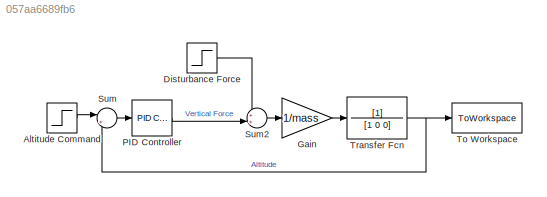
MODEL slx_057aa6689fb6
KIND model
CONFIG AbsTol = auto
CONFIG EnableMultiTasking = off
CONFIG FixedStep = auto
CONFIG MaxStep = auto
CONFIG MinStep = auto
CONFIG RelTol = 1e-3
CONFIG SampleTimeConstraint = Unconstrained
CONFIG SolverName = VariableStepAuto
CONFIG StartTime = 0.0
CONFIG StopTime = 40
BLOCK [Step] Altitude Command
  After = 10
  SampleTime = 0
  Time = 0
BLOCK [Step] Disturbance Force
  After = 2
  SampleTime = 0
  Time = 15
BLOCK [Gain] Gain
  Gain = 1/mass
BLOCK [Reference] PID Controller  REF=pid_lib/PID Controller
  Ports = [1, 1]
  SourceBlock = pid_lib/PID Controller
  SourceProductBaseCode = SL
  SourceType = PID 1dof
BLOCK [Sum] Sum
  Inputs = |+-
  Ports = [2, 1]
BLOCK [Sum] Sum2
  Inputs = ++|
  Ports = [2, 1]
BLOCK [ToWorkspace] To Workspace
  FixptAsFi = on
  MaxDataPoints = inf
  Ports = [1]
  SampleTime = -1
  SaveFormat = Timeseries
  VariableName = altitude
BLOCK [TransferFcn] Transfer Fcn
  Denominator = [1 0 0]
LINE Altitude Command:1 -> Sum:1
LINE Disturbance Force:1 -> Sum2:1
LINE Gain:1 -> Transfer Fcn:1
LINE PID Controller:1 -> Sum2:2
LINE Sum2:1 -> Gain:1
LINE Sum:1 -> PID Controller:1
NET Transfer Fcn:1 -> Sum:2, To Workspace:1
note: NET lines group one-source signal fan-out (src -> all destinations, sorted); 1:1 wires keep LINE
